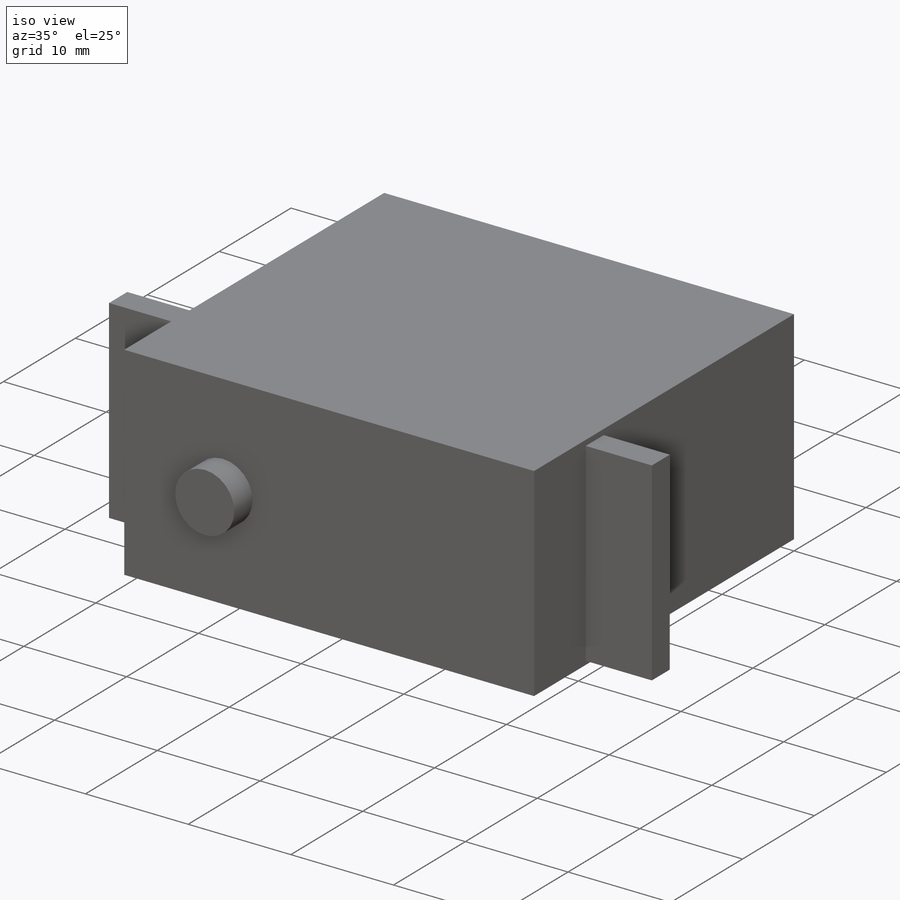
[diagram: iso view]
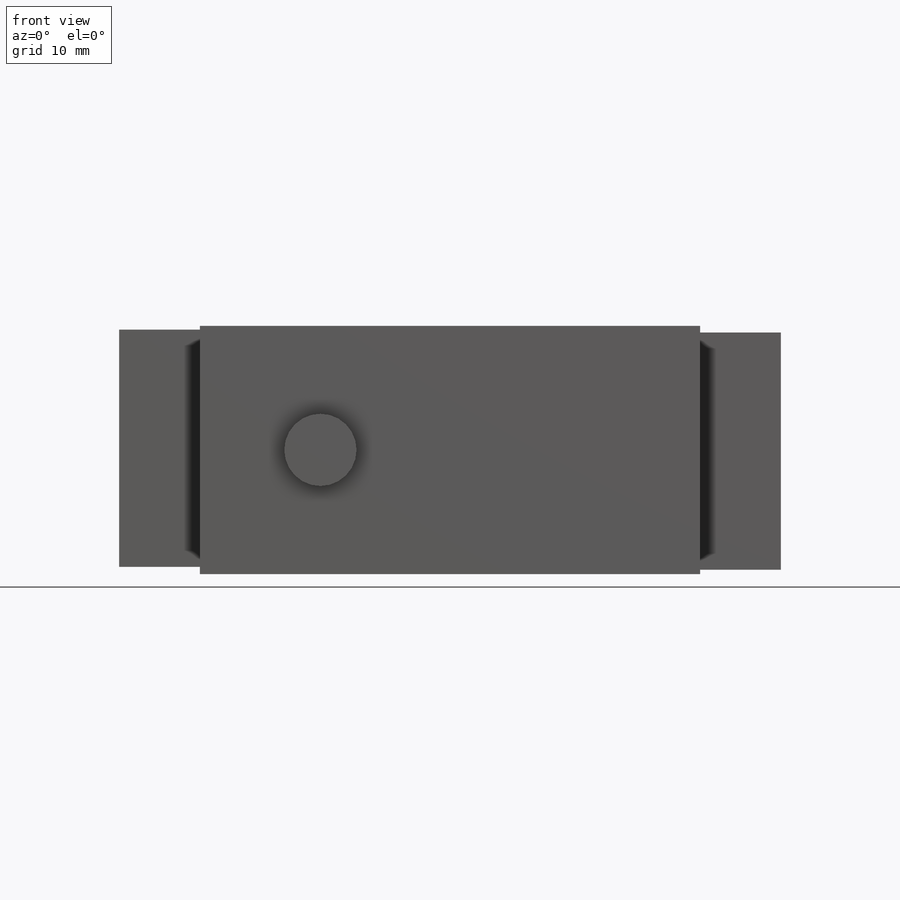
[diagram: front view]
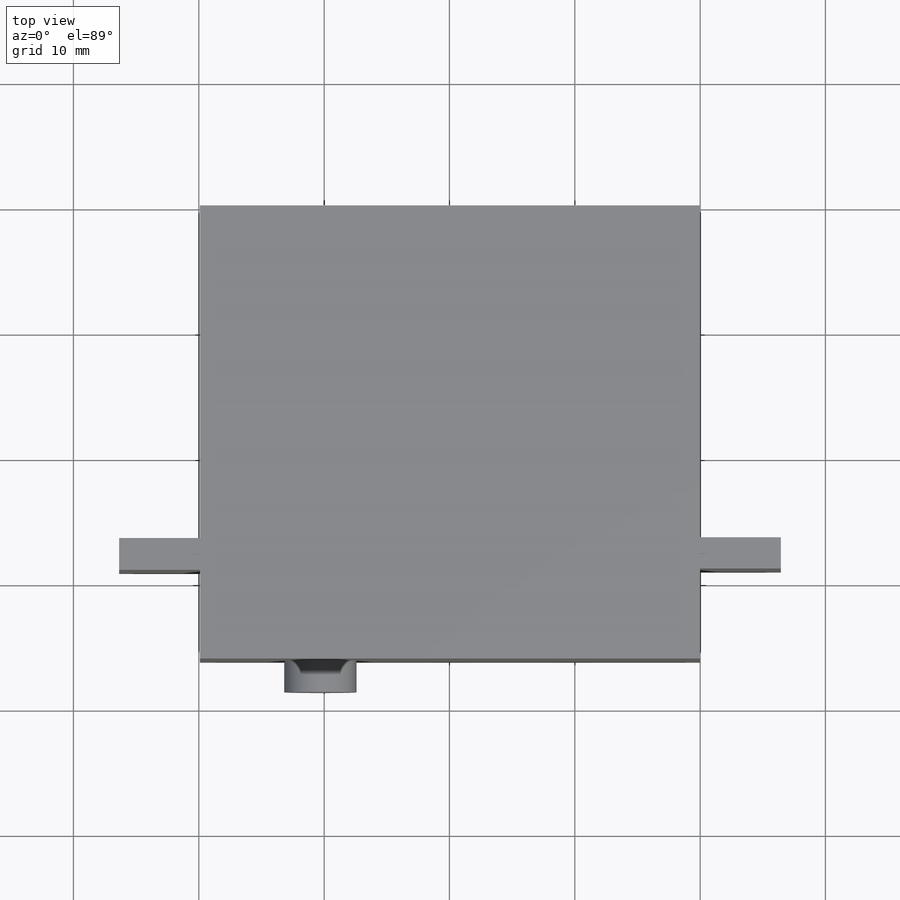
[diagram: top view]
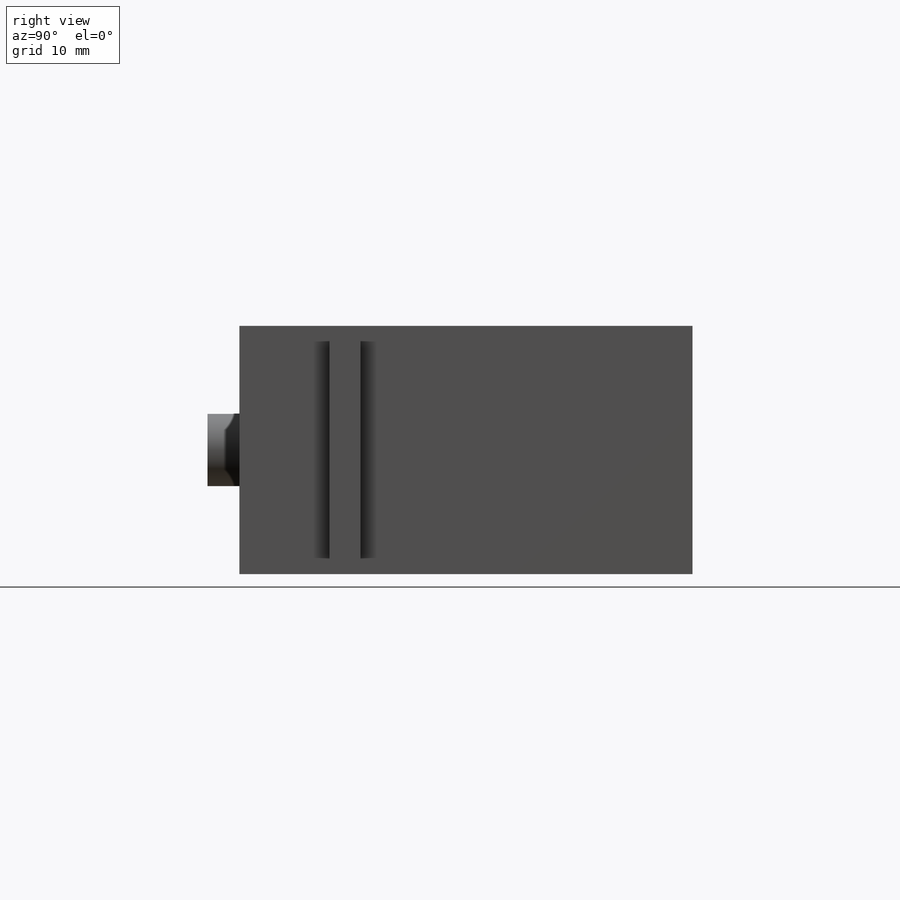
[diagram: right view]
SOLIDWORKS PART (.sldprt)
format: sldprt  version: not decoded by parser v0  size: 200,192 bytes
history: native  units: mm
features: sketch x4, extrude x4, material x1 (+13 scaffold rows collapsed)
feature tree (22):
  scaffold x13  (default folders/planes/origin — collapsed)
  material  "Material <not specified>"
  sketch  "Sketch1"  dims[D1=39.9161mm D2=36.1569mm]
  extrude  "Boss-Extrude1"  Depth=19.812mm
  sketch  "Sketch2"  dims[D1=18.923mm D2=2.4892mm D3=0.3556mm D4=7.1882mm]
  extrude  "Boss-Extrude3"  Depth=6.4389mm
  sketch  "Sketch4"  dims[D1=18.923mm D2=2.54mm D3=0.3048mm D4=7.0739mm]
  extrude  "Boss-Extrude4"  Depth=6.4389mm
  sketch  "Sketch5"  dims[c1.D2=5.7658mm c1.D3=5.7658mm c1.D1=6.731mm c2.D3=9.906mm c2.D4=9.906mm]
  extrude  "Boss-Extrude5"  Depth=2.54mm
decode coverage: 8 of 8 modeling features carry decoded parameters
note: suppression state not decoded; provenance and decode notes live in map.json
